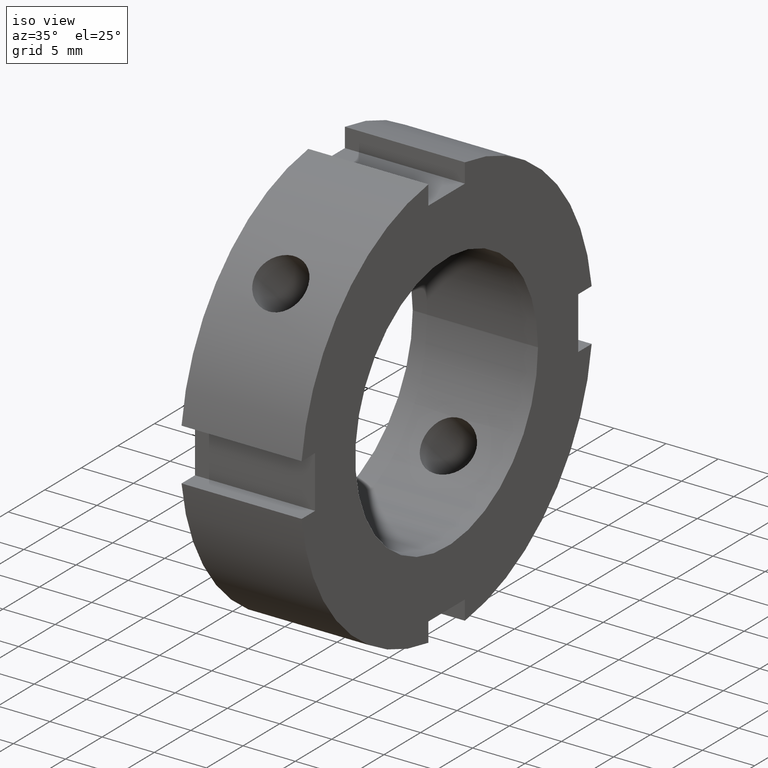
[diagram: clean part render]
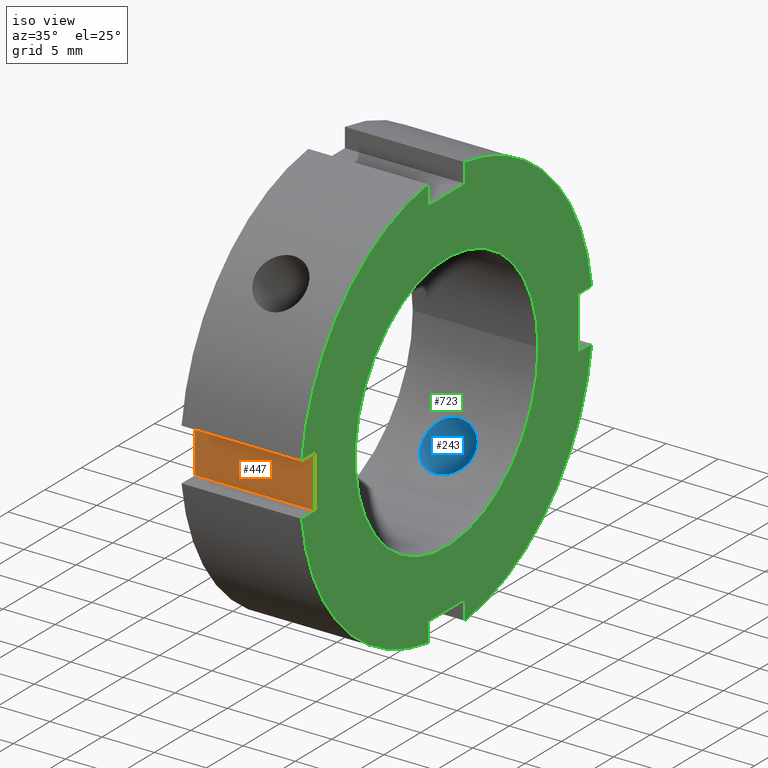
[diagram: same view with three faces highlighted in distinct colors, each labeled with its STEP entity id]
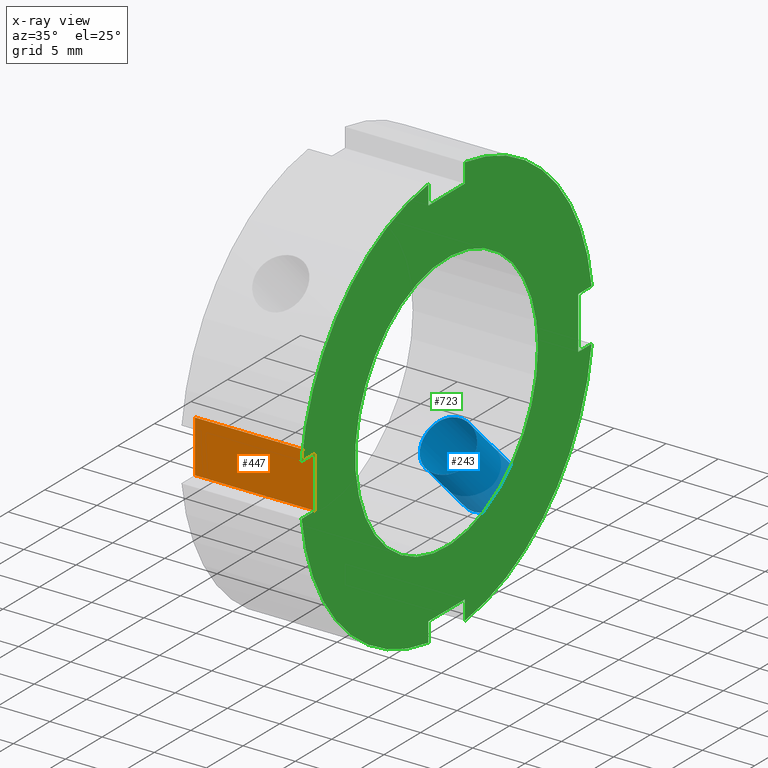
[diagram: x-ray of the same camera — body ghosted, the three highlighted faces saturated]
A machine part, iso view with three faces highlighted in distinct colors.
The next image is the same camera in x-ray (body ghosted, the three faces saturated) — at least one of them is partly hidden behind the body in this view.
Their STEP definitions:

[orange] entity #447 — the highlighted planar face has unit normal (0, 1, 0).
#351=CARTESIAN_POINT('',(0.499999999999998,-18.0,2.500000000000002));
#352=VERTEX_POINT('',#351);
#361=CARTESIAN_POINT('',(11.999999999999996,-18.0,2.500000000000002));
#362=VERTEX_POINT('',#361);
#363=CARTESIAN_POINT('',(11.999999999999996,-18.0,2.500000000000002));
#364=DIRECTION('',(-1.0,0.0,0.0));
#365=VECTOR('',#364,11.500000000000000);
#366=LINE('',#363,#365);
#367=EDGE_CURVE('',#362,#352,#366,.T.);
#393=CARTESIAN_POINT('',(0.499999999999998,-18.0,-2.499999999999997));
#394=VERTEX_POINT('',#393);
#409=CARTESIAN_POINT('',(11.999999999999996,-18.0,-2.499999999999997));
#410=VERTEX_POINT('',#409);
#417=CARTESIAN_POINT('',(11.999999999999996,-18.0,-2.499999999999997));
#418=DIRECTION('',(-1.0,0.0,0.0));
#419=VECTOR('',#418,11.500000000000000);
#420=LINE('',#417,#419);
#421=EDGE_CURVE('',#410,#394,#420,.T.);
#426=CARTESIAN_POINT('',(11.999999999999996,-18.0,-2.499999999999997));
#427=DIRECTION('',(0.0,1.0,0.0));
#428=DIRECTION('',(0.0,0.0,1.0));
#429=AXIS2_PLACEMENT_3D('',#426,#427,#428);
#430=PLANE('',#429);
#431=CARTESIAN_POINT('',(0.499999999999998,-18.0,-2.499999999999997));
#432=DIRECTION('',(0.0,0.0,1.0));
#433=VECTOR('',#432,4.999999999999998);
#434=LINE('',#431,#433);
#435=EDGE_CURVE('',#394,#352,#434,.T.);
#436=ORIENTED_EDGE('',*,*,#435,.F.);
#437=ORIENTED_EDGE('',*,*,#421,.F.);
#438=CARTESIAN_POINT('',(11.999999999999996,-18.0,2.500000000000002));
#439=DIRECTION('',(0.0,0.0,-1.0));
#440=VECTOR('',#439,4.999999999999998);
#441=LINE('',#438,#440);
#442=EDGE_CURVE('',#362,#410,#441,.T.);
#443=ORIENTED_EDGE('',*,*,#442,.F.);
#444=ORIENTED_EDGE('',*,*,#367,.T.);
#445=EDGE_LOOP('',(#436,#437,#443,#444));
#446=FACE_OUTER_BOUND('',#445,.T.);
#447=ADVANCED_FACE('',(#446),#430,.F.);

[blue] entity #243 — the highlighted cylindrical surface (bore or boss wall) has radius 2.4585 mm, axis along (0, -0.7071, 0.7071).
#156=CARTESIAN_POINT('',(5.999999999999996,40.583247775406043,-40.583247775406051));
#157=DIRECTION('',(0.0,-0.707106781186547,0.707106781186548));
#158=DIRECTION('',(1.0,0.0,0.0));
#159=AXIS2_PLACEMENT_3D('',#156,#157,#158);
#160=CYLINDRICAL_SURFACE('',#159,2.458500000000000);
#161=CARTESIAN_POINT('',(5.999999999999996,12.296459127753703,-15.773303170847964));
#162=VERTEX_POINT('',#161);
#163=CARTESIAN_POINT('',(5.999999999999996,12.296459127753703,-15.773303170847964));
#164=CARTESIAN_POINT('',(6.309031728745287,12.296459127753703,-15.773303170847964));
#165=CARTESIAN_POINT('',(6.638446184143287,12.345805275889166,-15.735216795334894));
#166=CARTESIAN_POINT('',(7.244075995513192,12.543571705065297,-15.578021834674832));
#167=CARTESIAN_POINT('',(7.520318291020638,12.691681694740211,-15.458626948454945));
#168=CARTESIAN_POINT('',(7.956524048848390,13.027037897636138,-15.177095052645628));
#169=CARTESIAN_POINT('',(8.145679894707632,13.236681295095753,-14.996071801450379));
#170=CARTESIAN_POINT('',(8.396676480061617,13.685104964261861,-14.588002032378915));
#171=CARTESIAN_POINT('',(8.458499999999996,13.923618899197056,-14.360652348264825));
#172=CARTESIAN_POINT('',(8.458499999999997,14.360652348264825,-13.923618899197066));
#173=CARTESIAN_POINT('',(8.396676480061618,14.588002032378906,-13.685104964261871));
#174=CARTESIAN_POINT('',(8.145679894707634,14.996071801450373,-13.236681295095762));
#175=CARTESIAN_POINT('',(7.956524048848391,15.177095052645624,-13.027037897636149));
#176=CARTESIAN_POINT('',(7.520318291020637,15.458626948454942,-12.691681694740220));
#177=CARTESIAN_POINT('',(7.244075995513191,15.578021834674827,-12.543571705065304));
#178=CARTESIAN_POINT('',(6.638446184143286,15.735216795334889,-12.345805275889173));
#179=CARTESIAN_POINT('',(6.309031728745287,15.773303170847958,-12.296459127753705));
#180=CARTESIAN_POINT('',(5.690968271254705,15.773303170847957,-12.296459127753705));
#181=CARTESIAN_POINT('',(5.361553815856706,15.735216795334892,-12.345805275889173));
#182=CARTESIAN_POINT('',(4.755924004486800,15.578021834674827,-12.543571705065306));
#183=CARTESIAN_POINT('',(4.479681708979356,15.458626948454938,-12.691681694740220));
#184=CARTESIAN_POINT('',(4.043475951151602,15.177095052645623,-13.027037897636149));
#185=CARTESIAN_POINT('',(3.854320105292360,14.996071801450370,-13.236681295095764));
#186=CARTESIAN_POINT('',(3.603323519938376,14.588002032378908,-13.685104964261869));
#187=CARTESIAN_POINT('',(3.541499999999997,14.360652348264821,-13.923618899197063));
#188=CARTESIAN_POINT('',(3.541499999999997,13.923618899197059,-14.360652348264827));
#189=CARTESIAN_POINT('',(3.603323519938375,13.685104964261862,-14.588002032378913));
#190=CARTESIAN_POINT('',(3.854320105292362,13.236681295095753,-14.996071801450379));
#191=CARTESIAN_POINT('',(4.043475951151602,13.027037897636138,-15.177095052645630));
#192=CARTESIAN_POINT('',(4.479681708979355,12.691681694740211,-15.458626948454945));
#193=CARTESIAN_POINT('',(4.755924004486801,12.543571705065297,-15.578021834674832));
#194=CARTESIAN_POINT('',(5.361553815856706,12.345805275889166,-15.735216795334894));
#195=CARTESIAN_POINT('',(5.690968271254705,12.296459127753703,-15.773303170847964));
#196=CARTESIAN_POINT('',(5.999999999999996,12.296459127753703,-15.773303170847964));
#197=B_SPLINE_CURVE_WITH_KNOTS('',3,(#163,#164,#165,#166,#167,#168,#169,#170,#171,#172,#173,#174,#175,#176,#177,#178,#179,#180,#181,#182,#183,#184,#185,#186,#187,#188,#189,#190,#191,#192,#193,#194,#195,#196),.UNSPECIFIED.,.T.,.U.,(4,2,2,2,2,2,2,2,2,2,2,2,2,2,2,2,4),(0.0,0.092709518623587,0.185419037247174,0.278127831879523,0.370836626511871,0.463545421144219,0.556254215776567,0.648963734400154,0.741673253023741,0.834382771647329,0.927092290270916,1.019801084903264,1.112509879535612,1.205218674167961,1.297927468800309,1.390636987423896,1.483346506047483),.UNSPECIFIED.);
#198=EDGE_CURVE('',#162,#162,#197,.T.);
#199=ORIENTED_EDGE('',*,*,#198,.F.);
#200=EDGE_LOOP('',(#199));
#201=FACE_OUTER_BOUND('',#200,.T.);
#202=CARTESIAN_POINT('',(5.999999999999996,6.927770272361425,-10.404614315455682));
#203=VERTEX_POINT('',#202);
#204=CARTESIAN_POINT('',(5.999999999999996,6.927770272361425,-10.404614315455682));
#205=CARTESIAN_POINT('',(5.690427554871608,6.927770272361425,-10.404614315455682));
#206=CARTESIAN_POINT('',(5.360789519550150,6.980788488775139,-10.369903516082706));
#207=CARTESIAN_POINT('',(4.755315289629571,7.191183618393366,-10.225125170317302));
#208=CARTESIAN_POINT('',(4.479407327491904,7.348029025569389,-10.114586245263302));
#209=CARTESIAN_POINT('',(4.043760030461279,7.699340157482082,-9.849799061304108));
#210=CARTESIAN_POINT('',(3.854681824349838,7.917396210527492,-9.677655477182803));
#211=CARTESIAN_POINT('',(3.603529769993219,8.377898323895533,-9.281863926968850));
#212=CARTESIAN_POINT('',(3.541499999999997,8.619945446738250,-9.057724082925425));
#213=CARTESIAN_POINT('',(3.541499999999997,9.057724082925422,-8.619945446738255));
#214=CARTESIAN_POINT('',(3.603529769993219,9.281863926968844,-8.377898323895540));
#215=CARTESIAN_POINT('',(3.854681824349837,9.677655477182798,-7.917396210527500));
#216=CARTESIAN_POINT('',(4.043760030461279,9.849799061304100,-7.699340157482091));
#217=CARTESIAN_POINT('',(4.479407327491903,10.114586245263297,-7.348029025569396));
#218=CARTESIAN_POINT('',(4.755315289629571,10.225125170317298,-7.191183618393367));
#219=CARTESIAN_POINT('',(5.360789519550151,10.369903516082701,-6.980788488775142));
#220=CARTESIAN_POINT('',(5.690427554871606,10.404614315455678,-6.927770272361423));
#221=CARTESIAN_POINT('',(6.309572445128387,10.404614315455678,-6.927770272361423));
#222=CARTESIAN_POINT('',(6.639210480449842,10.369903516082701,-6.980788488775142));
#223=CARTESIAN_POINT('',(7.244684710370422,10.225125170317298,-7.191183618393367));
#224=CARTESIAN_POINT('',(7.520592672508089,10.114586245263297,-7.348029025569396));
#225=CARTESIAN_POINT('',(7.956239969538713,9.849799061304100,-7.699340157482091));
#226=CARTESIAN_POINT('',(8.145318175650157,9.677655477182798,-7.917396210527500));
#227=CARTESIAN_POINT('',(8.396470230006775,9.281863926968844,-8.377898323895540));
#228=CARTESIAN_POINT('',(8.458499999999997,9.057724082925422,-8.619945446738255));
#229=CARTESIAN_POINT('',(8.458499999999997,8.619945446738250,-9.057724082925427));
#230=CARTESIAN_POINT('',(8.396470230006775,8.377898323895533,-9.281863926968850));
#231=CARTESIAN_POINT('',(8.145318175650155,7.917396210527493,-9.677655477182803));
#232=CARTESIAN_POINT('',(7.956239969538715,7.699340157482082,-9.849799061304108));
#233=CARTESIAN_POINT('',(7.520592672508091,7.348029025569389,-10.114586245263302));
#234=CARTESIAN_POINT('',(7.244684710370422,7.191183618393366,-10.225125170317300));
#235=CARTESIAN_POINT('',(6.639210480449843,6.980788488775139,-10.369903516082706));
#236=CARTESIAN_POINT('',(6.309572445128387,6.927770272361423,-10.404614315455682));
#237=CARTESIAN_POINT('',(5.999999999999996,6.927770272361423,-10.404614315455682));
#238=B_SPLINE_CURVE_WITH_KNOTS('',3,(#204,#205,#206,#207,#208,#209,#210,#211,#212,#213,#214,#215,#216,#217,#218,#219,#220,#221,#222,#223,#224,#225,#226,#227,#228,#229,#230,#231,#232,#233,#234,#235,#236,#237),.UNSPECIFIED.,.T.,.U.,(4,2,2,2,2,2,2,2,2,2,2,2,2,2,2,2,4),(0.0,0.092871733538517,0.185743467077033,0.278610339768998,0.371477212460962,0.464344085152927,0.557210957844891,0.650082691383408,0.742954424921925,0.835826158460442,0.928697891998959,1.021564764690923,1.114431637382887,1.207298510074852,1.300165382766817,1.393037116305333,1.485908849843850),.UNSPECIFIED.);
#239=EDGE_CURVE('',#203,#203,#238,.T.);
#240=ORIENTED_EDGE('',*,*,#239,.F.);
#241=EDGE_LOOP('',(#240));
#242=FACE_BOUND('',#241,.T.);
#243=ADVANCED_FACE('',(#201,#242),#160,.F.);

[green] entity #723 — the highlighted planar face has unit normal (1, 0, 0).
#259=CARTESIAN_POINT('',(11.999999999999996,-2.500000000000003,-18.0));
#260=VERTEX_POINT('',#259);
#267=CARTESIAN_POINT('',(11.999999999999996,-2.500000000000002,-19.843134832984425));
#268=VERTEX_POINT('',#267);
#269=CARTESIAN_POINT('',(11.999999999999996,-2.500000000000003,-19.843134832984425));
#270=DIRECTION('',(0.0,0.0,1.0));
#271=VECTOR('',#270,1.843134832984426);
#272=LINE('',#269,#271);
#273=EDGE_CURVE('',#268,#260,#272,.T.);
#299=CARTESIAN_POINT('',(11.999999999999996,2.499999999999995,-19.843134832984425));
#300=VERTEX_POINT('',#299);
#307=CARTESIAN_POINT('',(11.999999999999996,2.499999999999996,-18.0));
#308=VERTEX_POINT('',#307);
#309=CARTESIAN_POINT('',(11.999999999999996,2.499999999999996,-18.0));
#310=DIRECTION('',(0.0,0.0,-1.0));
#311=VECTOR('',#310,1.843134832984426);
#312=LINE('',#309,#311);
#313=EDGE_CURVE('',#308,#300,#312,.T.);
#336=CARTESIAN_POINT('',(11.999999999999996,-2.500000000000004,-17.999999999999996));
#337=DIRECTION('',(0.0,1.0,0.0));
#338=VECTOR('',#337,5.0);
#339=LINE('',#336,#338);
#340=EDGE_CURVE('',#260,#308,#339,.T.);
#361=CARTESIAN_POINT('',(11.999999999999996,-18.0,2.500000000000002));
#362=VERTEX_POINT('',#361);
#369=CARTESIAN_POINT('',(11.999999999999996,-19.843134832984425,2.500000000000001));
#370=VERTEX_POINT('',#369);
#371=CARTESIAN_POINT('',(11.999999999999996,-19.843134832984425,2.500000000000002));
#372=DIRECTION('',(0.0,1.0,0.0));
#373=VECTOR('',#372,1.843134832984426);
#374=LINE('',#371,#373);
#375=EDGE_CURVE('',#370,#362,#374,.T.);
#401=CARTESIAN_POINT('',(11.999999999999996,-19.843134832984425,-2.499999999999996));
#402=VERTEX_POINT('',#401);
#409=CARTESIAN_POINT('',(11.999999999999996,-18.0,-2.499999999999997));
#410=VERTEX_POINT('',#409);
#411=CARTESIAN_POINT('',(11.999999999999996,-18.0,-2.499999999999998));
#412=DIRECTION('',(0.0,-1.0,0.0));
#413=VECTOR('',#412,1.843134832984426);
#414=LINE('',#411,#413);
#415=EDGE_CURVE('',#410,#402,#414,.T.);
#438=CARTESIAN_POINT('',(11.999999999999996,-18.0,2.500000000000002));
#439=DIRECTION('',(0.0,0.0,-1.0));
#440=VECTOR('',#439,4.999999999999998);
#441=LINE('',#438,#440);
#442=EDGE_CURVE('',#362,#410,#441,.T.);
#463=CARTESIAN_POINT('',(11.999999999999996,2.500000000000000,18.0));
#464=VERTEX_POINT('',#463);
#471=CARTESIAN_POINT('',(11.999999999999996,2.500000000000000,19.843134832984425));
#472=VERTEX_POINT('',#471);
#473=CARTESIAN_POINT('',(11.999999999999996,2.500000000000000,19.843134832984425));
#474=DIRECTION('',(0.0,0.0,-1.0));
#475=VECTOR('',#474,1.843134832984426);
#476=LINE('',#473,#475);
#477=EDGE_CURVE('',#472,#464,#476,.T.);
#503=CARTESIAN_POINT('',(11.999999999999996,-2.499999999999998,19.843134832984425));
#504=VERTEX_POINT('',#503);
#511=CARTESIAN_POINT('',(11.999999999999996,-2.499999999999998,18.0));
#512=VERTEX_POINT('',#511);
#513=CARTESIAN_POINT('',(11.999999999999996,-2.499999999999998,18.0));
#514=DIRECTION('',(0.0,0.0,1.0));
#515=VECTOR('',#514,1.843134832984426);
#516=LINE('',#513,#515);
#517=EDGE_CURVE('',#512,#504,#516,.T.);
#540=CARTESIAN_POINT('',(11.999999999999996,2.500000000000000,18.0));
#541=DIRECTION('',(0.0,-1.0,0.0));
#542=VECTOR('',#541,4.999999999999999);
#543=LINE('',#540,#542);
#544=EDGE_CURVE('',#464,#512,#543,.T.);
#556=CARTESIAN_POINT('',(11.999999999999996,19.843134832984425,2.499999999999999));
#557=VERTEX_POINT('',#556);
#558=CARTESIAN_POINT('',(11.999999999999996,0.0,0.0));
#559=DIRECTION('',(1.0,0.0,0.0));
#560=DIRECTION('',(0.0,1.0,0.0));
#561=AXIS2_PLACEMENT_3D('',#558,#559,#560);
#562=CIRCLE('',#561,19.999999999999996);
#563=EDGE_CURVE('',#557,#472,#562,.T.);
#589=CARTESIAN_POINT('',(11.999999999999996,0.0,0.0));
#590=DIRECTION('',(1.0,0.0,0.0));
#591=DIRECTION('',(0.0,1.0,0.0));
#592=AXIS2_PLACEMENT_3D('',#589,#590,#591);
#593=CIRCLE('',#592,19.999999999999996);
#594=EDGE_CURVE('',#504,#370,#593,.T.);
#625=CARTESIAN_POINT('',(11.999999999999996,19.843134832984425,-2.499999999999999));
#626=VERTEX_POINT('',#625);
#633=CARTESIAN_POINT('',(11.999999999999996,0.0,0.0));
#634=DIRECTION('',(1.0,0.0,0.0));
#635=DIRECTION('',(0.0,1.0,0.0));
#636=AXIS2_PLACEMENT_3D('',#633,#634,#635);
#637=CIRCLE('',#636,19.999999999999996);
#638=EDGE_CURVE('',#300,#626,#637,.T.);
#652=CARTESIAN_POINT('',(11.999999999999996,0.0,0.0));
#653=DIRECTION('',(1.0,0.0,0.0));
#654=DIRECTION('',(0.0,1.0,0.0));
#655=AXIS2_PLACEMENT_3D('',#652,#653,#654);
#656=CIRCLE('',#655,19.999999999999996);
#657=EDGE_CURVE('',#402,#268,#656,.T.);
#670=CARTESIAN_POINT('',(11.999999999999996,16.250000000000000,0.0));
#671=DIRECTION('',(1.0,0.0,0.0));
#672=DIRECTION('',(0.0,0.0,-1.0));
#673=AXIS2_PLACEMENT_3D('',#670,#671,#672);
#674=PLANE('',#673);
#675=ORIENTED_EDGE('',*,*,#273,.T.);
#676=ORIENTED_EDGE('',*,*,#340,.T.);
#677=ORIENTED_EDGE('',*,*,#313,.T.);
#678=ORIENTED_EDGE('',*,*,#638,.T.);
#679=CARTESIAN_POINT('',(11.999999999999996,18.0,-2.500000000000000));
#680=VERTEX_POINT('',#679);
#681=CARTESIAN_POINT('',(11.999999999999996,19.843134832984425,-2.499999999999999));
#682=DIRECTION('',(0.0,-1.0,0.0));
#683=VECTOR('',#682,1.843134832984426);
#684=LINE('',#681,#683);
#685=EDGE_CURVE('',#626,#680,#684,.T.);
#686=ORIENTED_EDGE('',*,*,#685,.T.);
#687=CARTESIAN_POINT('',(11.999999999999996,18.0,2.500000000000000));
#688=VERTEX_POINT('',#687);
#689=CARTESIAN_POINT('',(11.999999999999996,18.0,-2.499999999999999));
#690=DIRECTION('',(0.0,0.0,1.0));
#691=VECTOR('',#690,4.999999999999998);
#692=LINE('',#689,#691);
#693=EDGE_CURVE('',#680,#688,#692,.T.);
#694=ORIENTED_EDGE('',*,*,#693,.T.);
#695=CARTESIAN_POINT('',(11.999999999999996,18.0,2.500000000000000));
#696=DIRECTION('',(0.0,1.0,0.0));
#697=VECTOR('',#696,1.843134832984426);
#698=LINE('',#695,#697);
#699=EDGE_CURVE('',#688,#557,#698,.T.);
#700=ORIENTED_EDGE('',*,*,#699,.T.);
#701=ORIENTED_EDGE('',*,*,#563,.T.);
#702=ORIENTED_EDGE('',*,*,#477,.T.);
#703=ORIENTED_EDGE('',*,*,#544,.T.);
#704=ORIENTED_EDGE('',*,*,#517,.T.);
#705=ORIENTED_EDGE('',*,*,#594,.T.);
#706=ORIENTED_EDGE('',*,*,#375,.T.);
#707=ORIENTED_EDGE('',*,*,#442,.T.);
#708=ORIENTED_EDGE('',*,*,#415,.T.);
#709=ORIENTED_EDGE('',*,*,#657,.T.);
#710=EDGE_LOOP('',(#675,#676,#677,#678,#686,#694,#700,#701,#702,#703,#704,#705,#706,#707,#708,#709));
#711=FACE_OUTER_BOUND('',#710,.T.);
#712=CARTESIAN_POINT('',(11.999999999999996,12.500000000000000,0.0));
#713=VERTEX_POINT('',#712);
#714=CARTESIAN_POINT('',(11.999999999999996,0.0,0.0));
#715=DIRECTION('',(1.0,0.0,0.0));
#716=DIRECTION('',(0.0,1.0,0.0));
#717=AXIS2_PLACEMENT_3D('',#714,#715,#716);
#718=CIRCLE('',#717,12.500000000000000);
#719=EDGE_CURVE('',#713,#713,#718,.T.);
#720=ORIENTED_EDGE('',*,*,#719,.F.);
#721=EDGE_LOOP('',(#720));
#722=FACE_BOUND('',#721,.T.);
#723=ADVANCED_FACE('',(#711,#722),#674,.T.);